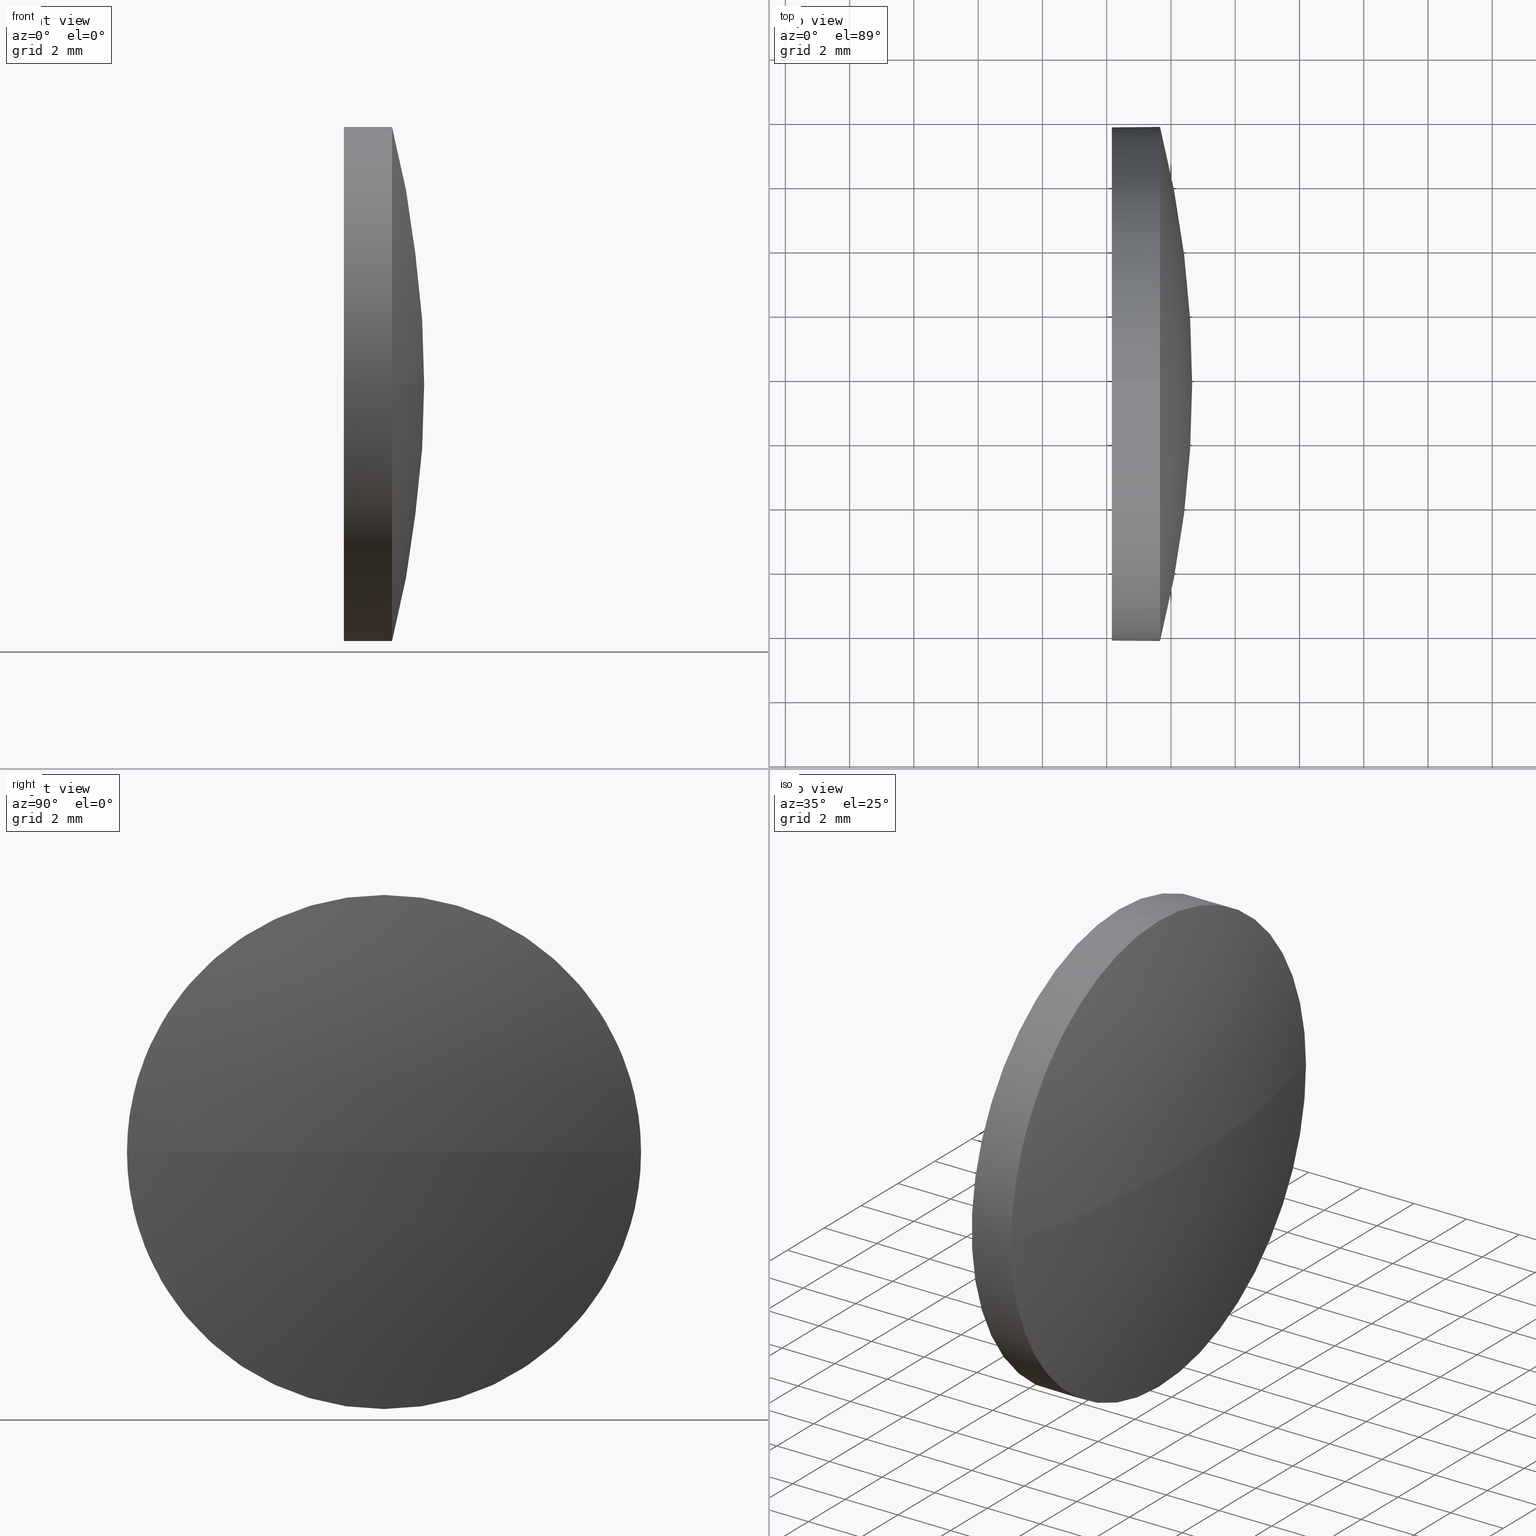
[diagram: canonical four-view strip — front | top / right | iso, engineering-drawing reading convention]
A machine part, canonical four-view strip (front | top / right | iso — engineering-drawing reading convention). The complete STEP part file that produces these views, byte-faithful:
ISO-10303-21;
HEADER;
FILE_DESCRIPTION (( 'STEP AP214' ),
    '1' );
FILE_NAME ('100116.STEP',
    '2019-05-14T03:06:22',
    ( '' ),
    ( '' ),
    'SwSTEP 2.0',
    'SolidWorks 2016',
    '' );
FILE_SCHEMA (( 'AUTOMOTIVE_DESIGN' ));
ENDSEC;

DATA;
#1 = VECTOR ( 'NONE', #8, 1000.000000000000000 ) ;
#2 = ADVANCED_FACE ( 'NONE', ( #128 ), #160, .T. ) ;
#3 = AXIS2_PLACEMENT_3D ( 'NONE', #127, #110, #22 ) ;
#4 = AXIS2_PLACEMENT_3D ( 'NONE', #157, #144, #39 ) ;
#5 = ORIENTED_EDGE ( 'NONE', *, *, #150, .F. ) ;
#6 = DIRECTION ( 'NONE',  ( -1.000000000000000000, -0.0000000000000000000, -0.0000000000000000000 ) ) ;
#7 = AXIS2_PLACEMENT_3D ( 'NONE', #171, #61, #44 ) ;
#8 = DIRECTION ( 'NONE',  ( -1.000000000000000000, -0.0000000000000000000, -0.0000000000000000000 ) ) ;
#9 = EDGE_CURVE ( 'NONE', #106, #162, #67, .T. ) ;
#10 = CARTESIAN_POINT ( 'NONE',  ( 0.0000000000000000000, 0.0000000000000000000, 0.0000000000000000000 ) ) ;
#11 = CIRCLE ( 'NONE', #164, 7.999999999999992900 ) ;
#12 = APPLICATION_PROTOCOL_DEFINITION ( 'draft international standard', 'automotive_design', 1998, #140 ) ;
#13 =( LENGTH_UNIT ( ) NAMED_UNIT ( * ) SI_UNIT ( .MILLI., .METRE. ) );
#14 =( LENGTH_UNIT ( ) NAMED_UNIT ( * ) SI_UNIT ( .MILLI., .METRE. ) );
#15 = ORIENTED_EDGE ( 'NONE', *, *, #9, .T. ) ;
#16 = AXIS2_PLACEMENT_3D ( 'NONE', #100, #183, #77 ) ;
#17 = PRESENTATION_STYLE_ASSIGNMENT (( #56 ) ) ;
#18 = SPHERICAL_SURFACE ( 'NONE', #3, 32.50000000000001400 ) ;
#19 = AXIS2_PLACEMENT_3D ( 'NONE', #69, #152, #72 ) ;
#20 = EDGE_LOOP ( 'NONE', ( #68, #60, #161, #109, #168 ) ) ;
#21 = ORIENTED_EDGE ( 'NONE', *, *, #150, .T. ) ;
#22 = DIRECTION ( 'NONE',  ( 0.0000000000000000000, -1.000000000000000000, 0.0000000000000000000 ) ) ;
#23 = STYLED_ITEM ( 'NONE', ( #17 ), #129 ) ;
#24 = FACE_OUTER_BOUND ( 'NONE', #137, .T. ) ;
#25 = CARTESIAN_POINT ( 'NONE',  ( 522.2374810103676700, 67.77708632238261500, 7.999999999999992900 ) ) ;
#26 =( NAMED_UNIT ( * ) SI_UNIT ( $, .STERADIAN. ) SOLID_ANGLE_UNIT ( ) );
#27 = CARTESIAN_POINT ( 'NONE',  ( 526.6602977152133500, 67.77708632238275800, 0.0000000000000000000 ) ) ;
#28 = ORIENTED_EDGE ( 'NONE', *, *, #119, .T. ) ;
#29 = ORIENTED_EDGE ( 'NONE', *, *, #50, .T. ) ;
#30 = APPLICATION_CONTEXT ( 'automotive_design' ) ;
#31 = COLOUR_RGB ( '',1.000000000000000000, 1.000000000000000000, 1.000000000000000000 ) ;
#32 = PRODUCT_DEFINITION_CONTEXT ( 'detailed design', #30, 'design' ) ;
#33 =( GEOMETRIC_REPRESENTATION_CONTEXT ( 3 ) GLOBAL_UNCERTAINTY_ASSIGNED_CONTEXT ( ( #108 ) ) GLOBAL_UNIT_ASSIGNED_CONTEXT ( ( #13, #153, #116 ) ) REPRESENTATION_CONTEXT ( 'NONE', 'WORKASPACE' ) );
#34 = ADVANCED_FACE ( 'NONE', ( #24 ), #124, .F. ) ;
#35 = PRESENTATION_STYLE_ASSIGNMENT (( #43 ) ) ;
#36 = FACE_OUTER_BOUND ( 'NONE', #169, .T. ) ;
#37 = CARTESIAN_POINT ( 'NONE',  ( 525.6602977152133500, 59.77708632238271500, 0.0000000000000000000 ) ) ;
#38 = DIRECTION ( 'NONE',  ( -1.000000000000000000, -0.0000000000000000000, -0.0000000000000000000 ) ) ;
#39 = DIRECTION ( 'NONE',  ( 0.0000000000000000000, -1.000000000000000000, -1.224646799147353500E-016 ) ) ;
#40 = VERTEX_POINT ( 'NONE', #96 ) ;
#41 = CARTESIAN_POINT ( 'NONE',  ( 522.2374810103676700, 67.77708632238261500, 0.0000000000000000000 ) ) ;
#42 = AXIS2_PLACEMENT_3D ( 'NONE', #167, #151, #52 ) ;
#43 = SURFACE_STYLE_USAGE ( .BOTH. , #130 ) ;
#44 = DIRECTION ( 'NONE',  ( 0.0000000000000000000, 0.0000000000000000000, 1.000000000000000000 ) ) ;
#45 = PRESENTATION_LAYER_ASSIGNMENT (  '', '', ( #63 ) ) ;
#46 = ORIENTED_EDGE ( 'NONE', *, *, #186, .T. ) ;
#47 = PRODUCT_DEFINITION_SHAPE ( 'NONE', 'NONE',  #92 ) ;
#48 = SURFACE_STYLE_FILL_AREA ( #57 ) ;
#49 = SHAPE_DEFINITION_REPRESENTATION ( #47, #185 ) ;
#50 = EDGE_CURVE ( 'NONE', #162, #138, #148, .T. ) ;
#51 = DIRECTION ( 'NONE',  ( 0.0000000000000000000, 0.0000000000000000000, 1.000000000000000000 ) ) ;
#52 = DIRECTION ( 'NONE',  ( 0.0000000000000000000, 0.0000000000000000000, -1.000000000000000000 ) ) ;
#53 = DIRECTION ( 'NONE',  ( -1.000000000000000000, -0.0000000000000000000, -0.0000000000000000000 ) ) ;
#54 = DIRECTION ( 'NONE',  ( 0.0000000000000000000, 0.0000000000000000000, 1.000000000000000000 ) ) ;
#55 = COLOUR_RGB ( '',1.000000000000000000, 1.000000000000000000, 1.000000000000000000 ) ;
#56 = SURFACE_STYLE_USAGE ( .BOTH. , #58 ) ;
#57 = FILL_AREA_STYLE ('',( #111 ) ) ;
#58 = SURFACE_SIDE_STYLE ('',( #48 ) ) ;
#59 = FACE_OUTER_BOUND ( 'NONE', #20, .T. ) ;
#60 = ORIENTED_EDGE ( 'NONE', *, *, #79, .T. ) ;
#61 = DIRECTION ( 'NONE',  ( -1.000000000000000000, -0.0000000000000000000, -0.0000000000000000000 ) ) ;
#62 = EDGE_CURVE ( 'NONE', #146, #138, #115, .T. ) ;
#63 = STYLED_ITEM ( 'NONE', ( #35 ), #185 ) ;
#64 = VECTOR ( 'NONE', #6, 1000.000000000000000 ) ;
#65 = EDGE_CURVE ( 'NONE', #40, #146, #99, .T. ) ;
#66 = CLOSED_SHELL ( 'NONE', ( #2, #123, #81, #147, #34 ) ) ;
#67 = CIRCLE ( 'NONE', #19, 7.999999999999992900 ) ;
#68 = ORIENTED_EDGE ( 'NONE', *, *, #50, .F. ) ;
#69 = CARTESIAN_POINT ( 'NONE',  ( 525.6602977152133500, 67.77708632238261500, 0.0000000000000000000 ) ) ;
#70 = DIRECTION ( 'NONE',  ( 0.0000000000000000000, 0.0000000000000000000, 1.000000000000000000 ) ) ;
#71 = AXIS2_PLACEMENT_3D ( 'NONE', #10, #87, #172 ) ;
#72 = DIRECTION ( 'NONE',  ( 0.0000000000000000000, 0.0000000000000000000, 1.000000000000000000 ) ) ;
#73 = APPLICATION_PROTOCOL_DEFINITION ( 'draft international standard', 'automotive_design', 1998, #30 ) ;
#74 =( NAMED_UNIT ( * ) SI_UNIT ( $, .STERADIAN. ) SOLID_ANGLE_UNIT ( ) );
#75 = DIRECTION ( 'NONE',  ( 0.0000000000000000000, 0.0000000000000000000, -1.000000000000000000 ) ) ;
#76 = FILL_AREA_STYLE ('',( #132 ) ) ;
#77 = DIRECTION ( 'NONE',  ( 0.0000000000000000000, -1.000000000000000000, 0.0000000000000000000 ) ) ;
#78 =( GEOMETRIC_REPRESENTATION_CONTEXT ( 3 ) GLOBAL_UNCERTAINTY_ASSIGNED_CONTEXT ( ( #104 ) ) GLOBAL_UNIT_ASSIGNED_CONTEXT ( ( #170, #86, #74 ) ) REPRESENTATION_CONTEXT ( 'NONE', 'WORKASPACE' ) );
#79 = EDGE_CURVE ( 'NONE', #162, #105, #93, .T. ) ;
#80 = SURFACE_STYLE_FILL_AREA ( #76 ) ;
#81 = ADVANCED_FACE ( 'NONE', ( #36 ), #18, .T. ) ;
#82 = MECHANICAL_DESIGN_GEOMETRIC_PRESENTATION_REPRESENTATION (  '', ( #63 ), #78 ) ;
#83 = ORIENTED_EDGE ( 'NONE', *, *, #79, .F. ) ;
#84 = CARTESIAN_POINT ( 'NONE',  ( 522.2374810103676700, 67.77708632238261500, -7.999999999999992900 ) ) ;
#85 = PRESENTATION_LAYER_ASSIGNMENT (  '', '', ( #23 ) ) ;
#86 =( NAMED_UNIT ( * ) PLANE_ANGLE_UNIT ( ) SI_UNIT ( $, .RADIAN. ) );
#87 = DIRECTION ( 'NONE',  ( 0.0000000000000000000, 0.0000000000000000000, 1.000000000000000000 ) ) ;
#88 = PRODUCT_RELATED_PRODUCT_CATEGORY ( 'part', '', ( #145 ) ) ;
#89 = CARTESIAN_POINT ( 'NONE',  ( 525.6602977152133500, 67.77708632238261500, -7.999999999999992900 ) ) ;
#90 = ORIENTED_EDGE ( 'NONE', *, *, #119, .F. ) ;
#91 = CARTESIAN_POINT ( 'NONE',  ( 524.1602977152133500, 67.77708632238261500, 0.0000000000000000000 ) ) ;
#92 = PRODUCT_DEFINITION ( 'δ֪', '', #159, #32 ) ;
#93 = CIRCLE ( 'NONE', #173, 7.999999999999992900 ) ;
#94 = AXIS2_PLACEMENT_3D ( 'NONE', #166, #180, #51 ) ;
#95 = CIRCLE ( 'NONE', #4, 32.50000000000001400 ) ;
#96 = CARTESIAN_POINT ( 'NONE',  ( 525.6602977152133500, 67.77708632238261500, 7.999999999999992900 ) ) ;
#97 = EDGE_LOOP ( 'NONE', ( #15, #29, #176, #154, #46 ) ) ;
#98 = CARTESIAN_POINT ( 'NONE',  ( 525.6602977152133500, 75.77708632238267200, 9.797174393178705400E-016 ) ) ;
#99 = LINE ( 'NONE', #25, #1 ) ;
#100 = CARTESIAN_POINT ( 'NONE',  ( 494.1602977152133500, 67.77708632238275800, 0.0000000000000000000 ) ) ;
#101 = CIRCLE ( 'NONE', #163, 32.50000000000002800 ) ;
#102 = EDGE_CURVE ( 'NONE', #105, #40, #11, .T. ) ;
#103 = MECHANICAL_DESIGN_GEOMETRIC_PRESENTATION_REPRESENTATION (  '', ( #23 ), #133 ) ;
#104 = UNCERTAINTY_MEASURE_WITH_UNIT (LENGTH_MEASURE( 1.000000000000000100E-005 ), #170, 'distance_accuracy_value', 'NONE');
#105 = VERTEX_POINT ( 'NONE', #37 ) ;
#106 = VERTEX_POINT ( 'NONE', #98 ) ;
#107 = CYLINDRICAL_SURFACE ( 'NONE', #122, 7.999999999999992900 ) ;
#108 = UNCERTAINTY_MEASURE_WITH_UNIT (LENGTH_MEASURE( 1.000000000000000100E-005 ), #13, 'distance_accuracy_value', 'NONE');
#109 = ORIENTED_EDGE ( 'NONE', *, *, #65, .T. ) ;
#110 = DIRECTION ( 'NONE',  ( 0.0000000000000000000, 0.0000000000000000000, 1.000000000000000000 ) ) ;
#111 = FILL_AREA_STYLE_COLOUR ( '', #55 ) ;
#112 = DIRECTION ( 'NONE',  ( -1.000000000000000000, -0.0000000000000000000, -0.0000000000000000000 ) ) ;
#113 = CIRCLE ( 'NONE', #7, 7.999999999999992900 ) ;
#114 = CARTESIAN_POINT ( 'NONE',  ( 524.1602977152133500, 67.77708632238261500, 7.999999999999992900 ) ) ;
#115 = CIRCLE ( 'NONE', #94, 7.999999999999992900 ) ;
#116 =( NAMED_UNIT ( * ) SI_UNIT ( $, .STERADIAN. ) SOLID_ANGLE_UNIT ( ) );
#117 = DIRECTION ( 'NONE',  ( -1.000000000000000000, -0.0000000000000000000, -0.0000000000000000000 ) ) ;
#118 = DIRECTION ( 'NONE',  ( -1.000000000000000000, 0.0000000000000000000, 0.0000000000000000000 ) ) ;
#119 = EDGE_CURVE ( 'NONE', #121, #106, #95, .T. ) ;
#120 = ORIENTED_EDGE ( 'NONE', *, *, #62, .T. ) ;
#121 = VERTEX_POINT ( 'NONE', #27 ) ;
#122 = AXIS2_PLACEMENT_3D ( 'NONE', #41, #117, #142 ) ;
#123 = ADVANCED_FACE ( 'NONE', ( #134 ), #181, .T. ) ;
#124 = PLANE ( 'NONE',  #42 ) ;
#125 = ORIENTED_EDGE ( 'NONE', *, *, #135, .T. ) ;
#126 = CARTESIAN_POINT ( 'NONE',  ( 525.6602977152133500, 67.77708632238261500, 0.0000000000000000000 ) ) ;
#127 = CARTESIAN_POINT ( 'NONE',  ( 494.1602977152133500, 67.77708632238275800, 0.0000000000000000000 ) ) ;
#128 = FACE_OUTER_BOUND ( 'NONE', #97, .T. ) ;
#129 = MANIFOLD_SOLID_BREP ( '��ת2', #66 ) ;
#130 = SURFACE_SIDE_STYLE ('',( #80 ) ) ;
#131 = AXIS2_PLACEMENT_3D ( 'NONE', #149, #53, #70 ) ;
#132 = FILL_AREA_STYLE_COLOUR ( '', #31 ) ;
#133 =( GEOMETRIC_REPRESENTATION_CONTEXT ( 3 ) GLOBAL_UNCERTAINTY_ASSIGNED_CONTEXT ( ( #136 ) ) GLOBAL_UNIT_ASSIGNED_CONTEXT ( ( #14, #156, #26 ) ) REPRESENTATION_CONTEXT ( 'NONE', 'WORKASPACE' ) );
#134 = FACE_OUTER_BOUND ( 'NONE', #143, .T. ) ;
#135 = EDGE_CURVE ( 'NONE', #138, #146, #175, .T. ) ;
#136 = UNCERTAINTY_MEASURE_WITH_UNIT (LENGTH_MEASURE( 1.000000000000000100E-005 ), #14, 'distance_accuracy_value', 'NONE');
#137 = EDGE_LOOP ( 'NONE', ( #120, #125 ) ) ;
#138 = VERTEX_POINT ( 'NONE', #165 ) ;
#139 = AXIS2_PLACEMENT_3D ( 'NONE', #91, #141, #184 ) ;
#140 = APPLICATION_CONTEXT ( 'automotive_design' ) ;
#141 = DIRECTION ( 'NONE',  ( -1.000000000000000000, -0.0000000000000000000, -0.0000000000000000000 ) ) ;
#142 = DIRECTION ( 'NONE',  ( 0.0000000000000000000, 0.0000000000000000000, 1.000000000000000000 ) ) ;
#143 = EDGE_LOOP ( 'NONE', ( #5, #28, #177, #174 ) ) ;
#144 = DIRECTION ( 'NONE',  ( 0.0000000000000000000, -1.224646799147353200E-016, 1.000000000000000000 ) ) ;
#145 = PRODUCT ( '100116', '100116', '', ( #182 ) ) ;
#146 = VERTEX_POINT ( 'NONE', #114 ) ;
#147 = ADVANCED_FACE ( 'NONE', ( #59 ), #107, .T. ) ;
#148 = LINE ( 'NONE', #84, #64 ) ;
#149 = CARTESIAN_POINT ( 'NONE',  ( 522.2374810103676700, 67.77708632238261500, 0.0000000000000000000 ) ) ;
#150 = EDGE_CURVE ( 'NONE', #121, #105, #101, .T. ) ;
#151 = DIRECTION ( 'NONE',  ( 1.000000000000000000, 0.0000000000000000000, 0.0000000000000000000 ) ) ;
#152 = DIRECTION ( 'NONE',  ( -1.000000000000000000, -0.0000000000000000000, -0.0000000000000000000 ) ) ;
#153 =( NAMED_UNIT ( * ) PLANE_ANGLE_UNIT ( ) SI_UNIT ( $, .RADIAN. ) );
#154 = ORIENTED_EDGE ( 'NONE', *, *, #65, .F. ) ;
#155 = CARTESIAN_POINT ( 'NONE',  ( 494.1602977152133500, 67.77708632238275800, 0.0000000000000000000 ) ) ;
#156 =( NAMED_UNIT ( * ) PLANE_ANGLE_UNIT ( ) SI_UNIT ( $, .RADIAN. ) );
#157 = CARTESIAN_POINT ( 'NONE',  ( 494.1602977152133500, 67.77708632238275800, 0.0000000000000000000 ) ) ;
#158 = ORIENTED_EDGE ( 'NONE', *, *, #9, .F. ) ;
#159 = PRODUCT_DEFINITION_FORMATION_WITH_SPECIFIED_SOURCE ( '�κ�', '', #145, .NOT_KNOWN. ) ;
#160 = CYLINDRICAL_SURFACE ( 'NONE', #131, 7.999999999999992900 ) ;
#161 = ORIENTED_EDGE ( 'NONE', *, *, #102, .T. ) ;
#162 = VERTEX_POINT ( 'NONE', #89 ) ;
#163 = AXIS2_PLACEMENT_3D ( 'NONE', #155, #75, #118 ) ;
#164 = AXIS2_PLACEMENT_3D ( 'NONE', #126, #38, #54 ) ;
#165 = CARTESIAN_POINT ( 'NONE',  ( 524.1602977152133500, 67.77708632238261500, -7.999999999999992900 ) ) ;
#166 = CARTESIAN_POINT ( 'NONE',  ( 524.1602977152133500, 67.77708632238261500, 0.0000000000000000000 ) ) ;
#167 = CARTESIAN_POINT ( 'NONE',  ( 524.1602977152133500, 67.77708632238261500, 0.0000000000000000000 ) ) ;
#168 = ORIENTED_EDGE ( 'NONE', *, *, #135, .F. ) ;
#169 = EDGE_LOOP ( 'NONE', ( #90, #21, #83, #158 ) ) ;
#170 =( LENGTH_UNIT ( ) NAMED_UNIT ( * ) SI_UNIT ( .MILLI., .METRE. ) );
#171 = CARTESIAN_POINT ( 'NONE',  ( 525.6602977152133500, 67.77708632238261500, 0.0000000000000000000 ) ) ;
#172 = DIRECTION ( 'NONE',  ( 1.000000000000000000, 0.0000000000000000000, 0.0000000000000000000 ) ) ;
#173 = AXIS2_PLACEMENT_3D ( 'NONE', #179, #112, #178 ) ;
#174 = ORIENTED_EDGE ( 'NONE', *, *, #102, .F. ) ;
#175 = CIRCLE ( 'NONE', #139, 7.999999999999992900 ) ;
#176 = ORIENTED_EDGE ( 'NONE', *, *, #62, .F. ) ;
#177 = ORIENTED_EDGE ( 'NONE', *, *, #186, .F. ) ;
#178 = DIRECTION ( 'NONE',  ( 0.0000000000000000000, 0.0000000000000000000, 1.000000000000000000 ) ) ;
#179 = CARTESIAN_POINT ( 'NONE',  ( 525.6602977152133500, 67.77708632238261500, 0.0000000000000000000 ) ) ;
#180 = DIRECTION ( 'NONE',  ( -1.000000000000000000, -0.0000000000000000000, -0.0000000000000000000 ) ) ;
#181 = SPHERICAL_SURFACE ( 'NONE', #16, 32.50000000000001400 ) ;
#182 = PRODUCT_CONTEXT ( 'NONE', #140, 'mechanical' ) ;
#183 = DIRECTION ( 'NONE',  ( 0.0000000000000000000, 0.0000000000000000000, 1.000000000000000000 ) ) ;
#184 = DIRECTION ( 'NONE',  ( 0.0000000000000000000, 0.0000000000000000000, 1.000000000000000000 ) ) ;
#185 = ADVANCED_BREP_SHAPE_REPRESENTATION ( '100116', ( #129, #71 ), #33 ) ;
#186 = EDGE_CURVE ( 'NONE', #40, #106, #113, .T. ) ;
ENDSEC;
END-ISO-10303-21;
